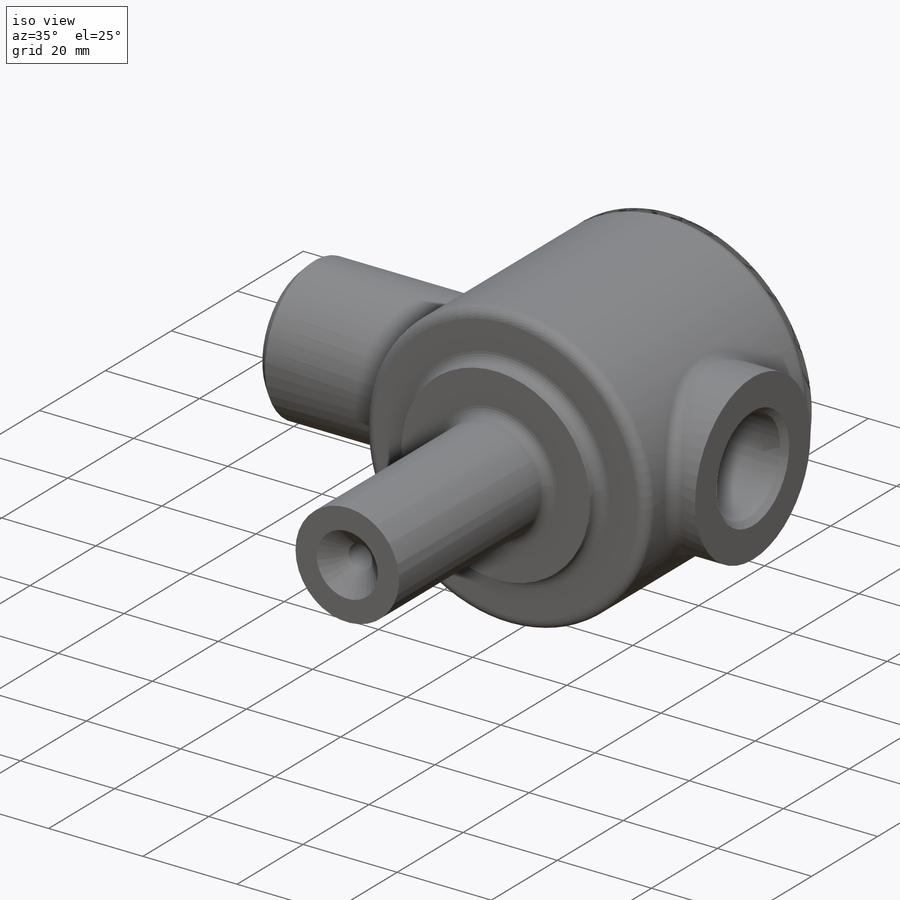
[diagram: iso view]
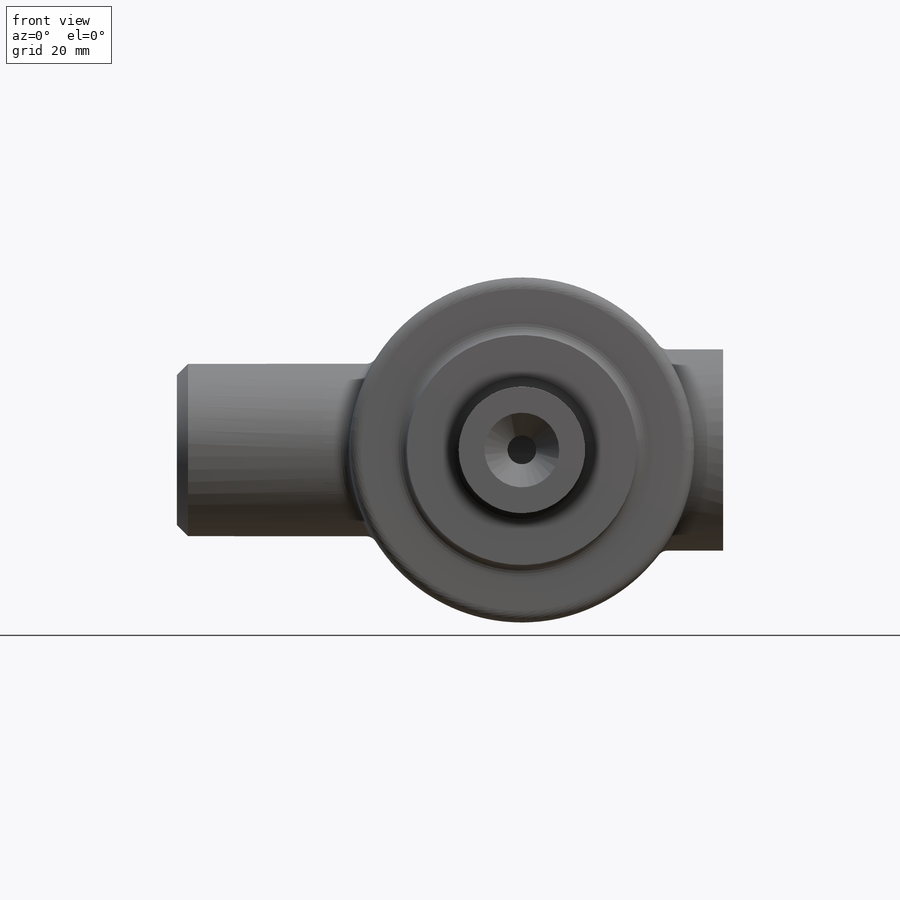
[diagram: front view]
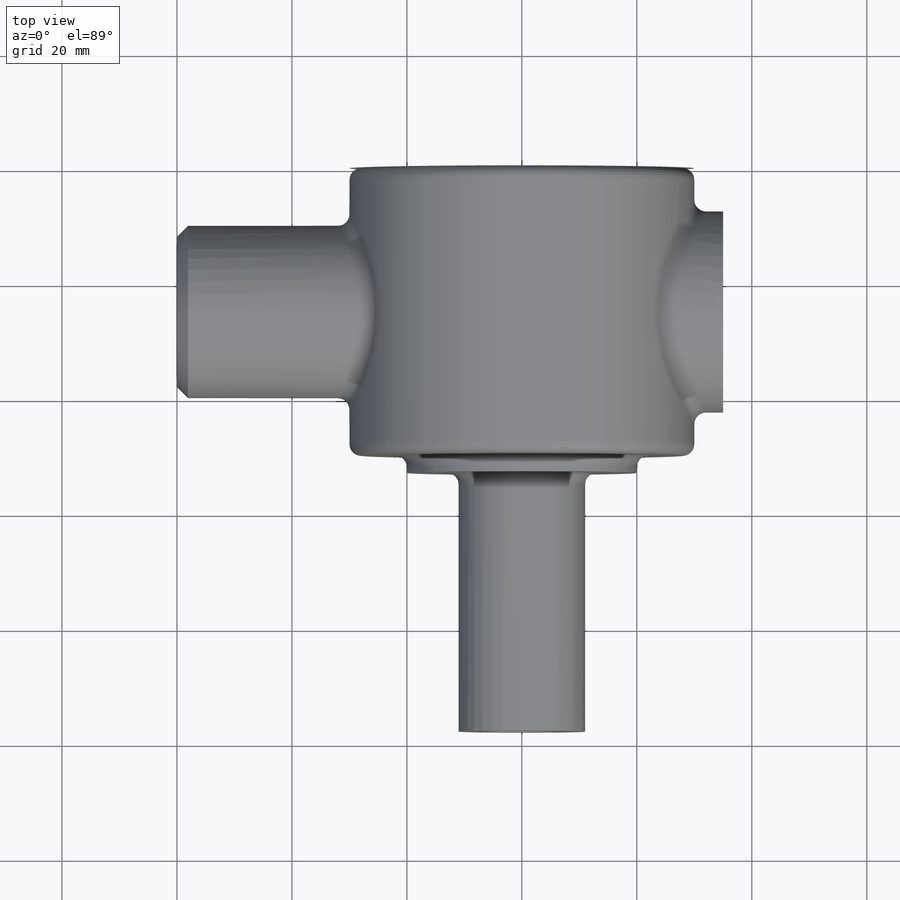
[diagram: top view]
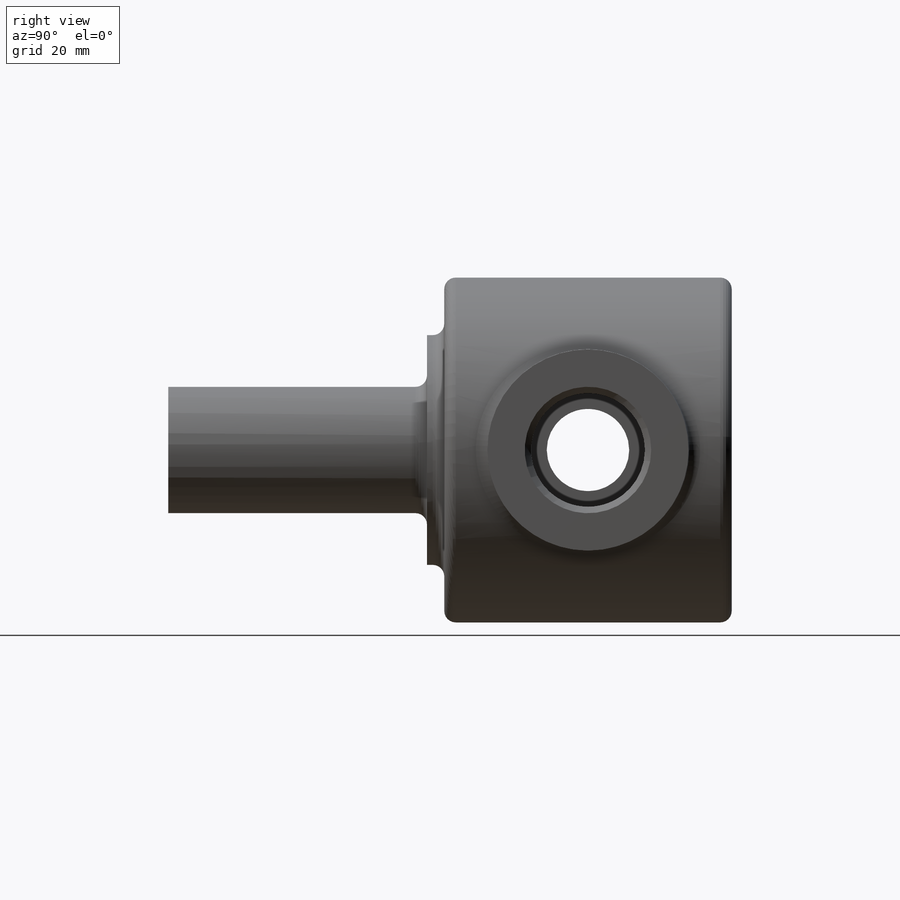
[diagram: right view]
SOLIDWORKS PART (.sldprt)
format: sldprt  version: not decoded by parser v0  size: 681,984 bytes
history: native  units: mm
features: sketch x8, extrude x5, plane x3, thread x3, chamfer x3, cut_revolve x2, material x1, fillet x1, cut_extrude x1 (+9 scaffold rows collapsed)
feature tree (36):
  scaffold x9  (default folders/planes/origin — collapsed)
  material  "Сталь"
  plane  "Спереди"
  plane  "Сверху"
  plane  "Справа"
  sketch  "Эскиз1"  dims[D1=60.0mm]
  extrude  "Бобышка-Вытянуть1"  Depth=50mm
  sketch  "Эскиз2"  dims[D1=40.0mm]
  extrude  "Бобышка-Вытянуть2"  Depth=3mm
  sketch  "Эскиз3"  dims[D1=22.0mm]
  extrude  "Бобышка-Вытянуть3"  Depth=45mm
  sketch  "Эскиз4"  dims[D1=35.0mm]
  extrude  "Бобышка-Вытянуть4"  Depth=35mm
  sketch  "Эскиз8"  dims[D1=30.0mm]
  extrude  "Бобышка-Вытянуть5"  [1 undecoded]
  thread  "Условное изображение резьбы2"  Diameter=30mm  [1 undecoded]
  sketch  "Эскиз5"  dims[c1.D1=19.0mm c1.D2=50.0mm c1.D3=14.344mm c1.D4=25.0mm c1.D5=22.0mm c1.D6=~3.772578mm c2.D6=60.0deg c3.D6=3.0mm]
  cut_revolve  "Вырез-Повернуть1"  [1 undecoded]
  thread  "Условное изображение резьбы3"  Diameter=16mm  [1 undecoded]
  sketch  "Эскиз6"  dims[c1.D1=5.0mm c1.D2=4.0mm c1.D3=4.0mm c2.D3=45.0deg c2.D4=5.0mm]
  cut_revolve  "Вырез-Повернуть2"  Angle=360deg
  fillet  "Скругление1"  Radius=2mm
  sketch  "Эскиз7"  dims[D1=19.797mm]
  cut_extrude  "Вырез-Вытянуть1"  [1 undecoded]
  thread  "Условное изображение резьбы1"  Diameter=5mm  [1 undecoded]
  chamfer  "Фаска1"  Distance=1.1015mm Angle=45deg
  chamfer  "Фаска2"  Distance=1.921mm Angle=45deg
  chamfer  "Фаска3"  Distance=0.828mm Angle=45deg
decode coverage: 20 of 23 modeling features carry decoded parameters
note: ~ marks probable driven/reference dimensions
note: 6 parameter values undecoded
summary: no parameter record found for 3 features
note: suppression state not decoded; provenance and decode notes live in map.json
